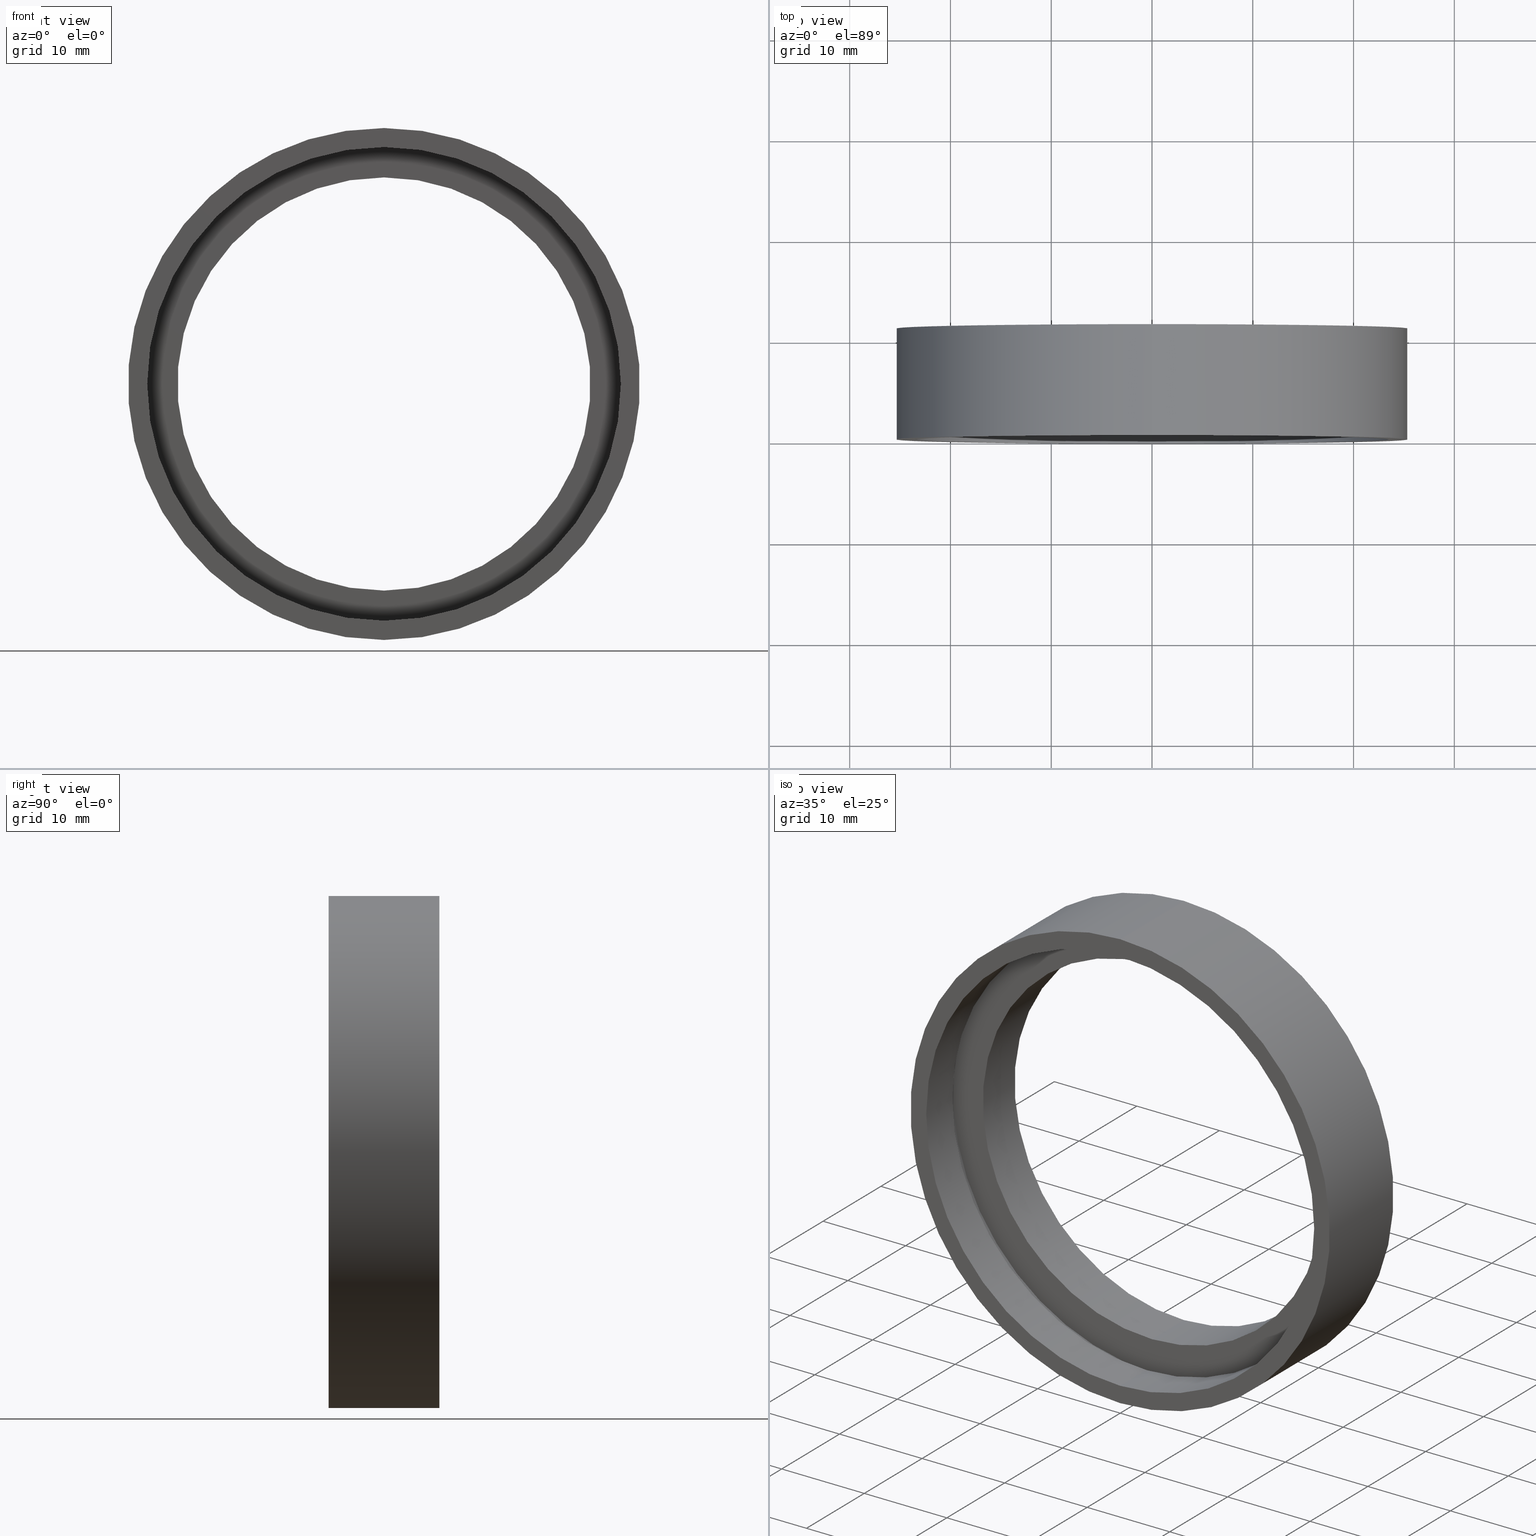
[diagram: canonical four-view strip — front | top / right | iso, engineering-drawing reading convention]
A machine part, canonical four-view strip (front | top / right | iso — engineering-drawing reading convention). The complete STEP part file that produces these views, byte-faithful:
ISO-10303-21;
HEADER;
FILE_DESCRIPTION (( 'STEP AP214' ),
    '1' );
FILE_NAME ('504021.STEP',
    '2019-10-09T02:10:04',
    ( 'user' ),
    ( '΢���й�' ),
    'SwSTEP 2.0',
    'SolidWorks 2016',
    '' );
FILE_SCHEMA (( 'AUTOMOTIVE_DESIGN' ));
ENDSEC;

DATA;
#1 = CIRCLE ( 'NONE', #322, 25.40000000000000200 ) ;
#2 = EDGE_LOOP ( 'NONE', ( #192, #219 ) ) ;
#3 = CARTESIAN_POINT ( 'NONE',  ( 2.510525938252074900E-015, 60.02082041425541100, -20.50000000000000700 ) ) ;
#4 = FILL_AREA_STYLE_COLOUR ( '', #423 ) ;
#5 = ADVANCED_FACE ( 'NONE', ( #353 ), #59, .F. ) ;
#6 = ORIENTED_EDGE ( 'NONE', *, *, #84, .T. ) ;
#7 = EDGE_LOOP ( 'NONE', ( #319, #6 ) ) ;
#8 = VERTEX_POINT ( 'NONE', #174 ) ;
#9 = UNCERTAINTY_MEASURE_WITH_UNIT (LENGTH_MEASURE( 1.000000000000000100E-005 ), #267, 'distance_accuracy_value', 'NONE');
#10 = ADVANCED_FACE ( 'NONE', ( #233 ), #75, .T. ) ;
#11 = DIRECTION ( 'NONE',  ( 0.0000000000000000000, 0.0000000000000000000, 1.000000000000000000 ) ) ;
#12 = CARTESIAN_POINT ( 'NONE',  ( 2.510525938252074900E-015, 10.99999999999999600, -20.50000000000000700 ) ) ;
#13 = DIRECTION ( 'NONE',  ( 0.0000000000000000000, 0.0000000000000000000, 1.000000000000000000 ) ) ;
#14 = AXIS2_PLACEMENT_3D ( 'NONE', #272, #115, #230 ) ;
#15 = CIRCLE ( 'NONE', #102, 23.50000000000000700 ) ;
#16 = EDGE_CURVE ( 'NONE', #8, #180, #321, .T. ) ;
#17 = MECHANICAL_DESIGN_GEOMETRIC_PRESENTATION_REPRESENTATION (  '', ( #411 ), #211 ) ;
#18 = PRESENTATION_STYLE_ASSIGNMENT (( #274 ) ) ;
#19 = VERTEX_POINT ( 'NONE', #367 ) ;
#20 = AXIS2_PLACEMENT_3D ( 'NONE', #88, #91, #100 ) ;
#21 = CARTESIAN_POINT ( 'NONE',  ( 0.0000000000000000000, 0.0000000000000000000, 25.40000000000000200 ) ) ;
#22 = CARTESIAN_POINT ( 'NONE',  ( 2.951398785945122000E-015, 4.499999999999997300, -24.10000000000000900 ) ) ;
#23 = PRESENTATION_LAYER_ASSIGNMENT (  '', '', ( #39 ) ) ;
#24 = CARTESIAN_POINT ( 'NONE',  ( 0.0000000000000000000, 60.02082041425541100, 0.0000000000000000000 ) ) ;
#25 = FILL_AREA_STYLE_COLOUR ( '', #415 ) ;
#26 = EDGE_CURVE ( 'NONE', #151, #168, #407, .T. ) ;
#27 = CYLINDRICAL_SURFACE ( 'NONE', #116, 20.50000000000000700 ) ;
#28 = DIRECTION ( 'NONE',  ( -0.0000000000000000000, 1.000000000000000000, -0.0000000000000000000 ) ) ;
#29 = DIRECTION ( 'NONE',  ( -0.0000000000000000000, 1.000000000000000000, -0.0000000000000000000 ) ) ;
#30 = PRODUCT ( '504021', '504021', '', ( #247 ) ) ;
#31 = CARTESIAN_POINT ( 'NONE',  ( 0.0000000000000000000, 4.499999999999997300, 0.0000000000000000000 ) ) ;
#32 = PLANE ( 'NONE',  #93 ) ;
#33 = DIRECTION ( 'NONE',  ( -0.0000000000000000000, 1.000000000000000000, -0.0000000000000000000 ) ) ;
#34 = DIRECTION ( 'NONE',  ( -0.0000000000000000000, 1.000000000000000000, -0.0000000000000000000 ) ) ;
#35 = EDGE_LOOP ( 'NONE', ( #124, #277, #345, #216 ) ) ;
#36 = FACE_OUTER_BOUND ( 'NONE', #35, .T. ) ;
#37 = CARTESIAN_POINT ( 'NONE',  ( 0.0000000000000000000, 5.499999999999998200, 0.0000000000000000000 ) ) ;
#38 = CARTESIAN_POINT ( 'NONE',  ( 0.0000000000000000000, 0.0000000000000000000, 23.50000000000000700 ) ) ;
#39 = STYLED_ITEM ( 'NONE', ( #426 ), #434 ) ;
#40 = CARTESIAN_POINT ( 'NONE',  ( 2.877919977996281100E-015, 0.0000000000000000000, -23.50000000000000700 ) ) ;
#41 = CARTESIAN_POINT ( 'NONE',  ( 0.0000000000000000000, 0.0000000000000000000, 0.0000000000000000000 ) ) ;
#42 = PRESENTATION_STYLE_ASSIGNMENT (( #81 ) ) ;
#43 = LINE ( 'NONE', #3, #256 ) ;
#44 = PRODUCT_DEFINITION_FORMATION_WITH_SPECIFIED_SOURCE ( '�κ�', '', #30, .NOT_KNOWN. ) ;
#45 = AXIS2_PLACEMENT_3D ( 'NONE', #203, #46, #359 ) ;
#46 = DIRECTION ( 'NONE',  ( -0.0000000000000000000, 1.000000000000000000, -0.0000000000000000000 ) ) ;
#47 = ORIENTED_EDGE ( 'NONE', *, *, #273, .T. ) ;
#48 = CYLINDRICAL_SURFACE ( 'NONE', #14, 23.50000000000000700 ) ;
#49 = VERTEX_POINT ( 'NONE', #204 ) ;
#50 = VECTOR ( 'NONE', #432, 1000.000000000000000 ) ;
#51 = DIRECTION ( 'NONE',  ( -0.0000000000000000000, 1.000000000000000000, -0.0000000000000000000 ) ) ;
#52 = CARTESIAN_POINT ( 'NONE',  ( 3.110602869834277300E-015, 60.02082041425541100, -25.40000000000000200 ) ) ;
#53 = UNCERTAINTY_MEASURE_WITH_UNIT (LENGTH_MEASURE( 1.000000000000000100E-005 ), #361, 'distance_accuracy_value', 'NONE');
#54 = MECHANICAL_DESIGN_GEOMETRIC_PRESENTATION_REPRESENTATION (  '', ( #70 ), #62 ) ;
#55 =( NAMED_UNIT ( * ) PLANE_ANGLE_UNIT ( ) SI_UNIT ( $, .RADIAN. ) );
#56 = EDGE_LOOP ( 'NONE', ( #384, #431, #408, #264 ) ) ;
#57 = EDGE_LOOP ( 'NONE', ( #400, #165 ) ) ;
#58 = CARTESIAN_POINT ( 'NONE',  ( 0.0000000000000000000, 60.02082041425541100, 0.0000000000000000000 ) ) ;
#59 = CYLINDRICAL_SURFACE ( 'NONE', #357, 24.10000000000000900 ) ;
#60 = PRESENTATION_LAYER_ASSIGNMENT (  '', '', ( #411 ) ) ;
#61 = SURFACE_SIDE_STYLE ('',( #406 ) ) ;
#62 =( GEOMETRIC_REPRESENTATION_CONTEXT ( 3 ) GLOBAL_UNCERTAINTY_ASSIGNED_CONTEXT ( ( #206 ) ) GLOBAL_UNIT_ASSIGNED_CONTEXT ( ( #92, #129, #253 ) ) REPRESENTATION_CONTEXT ( 'NONE', 'WORKASPACE' ) );
#63 = SURFACE_STYLE_USAGE ( .BOTH. , #258 ) ;
#64 = LINE ( 'NONE', #402, #303 ) ;
#65 = ORIENTED_EDGE ( 'NONE', *, *, #76, .T. ) ;
#66 = AXIS2_PLACEMENT_3D ( 'NONE', #41, #109, #420 ) ;
#67 = DIRECTION ( 'NONE',  ( 0.0000000000000000000, -1.000000000000000000, 0.0000000000000000000 ) ) ;
#68 = FILL_AREA_STYLE_COLOUR ( '', #336 ) ;
#69 = PLANE ( 'NONE',  #112 ) ;
#70 = STYLED_ITEM ( 'NONE', ( #374 ), #418 ) ;
#71 = CARTESIAN_POINT ( 'NONE',  ( 2.951398785945122000E-015, 5.499999999999998200, -24.10000000000000900 ) ) ;
#72 = CLOSED_SHELL ( 'NONE', ( #117, #326, #5, #434, #333, #418, #289, #181, #270, #148, #310, #10 ) ) ;
#73 = DIRECTION ( 'NONE',  ( 0.0000000000000000000, -1.000000000000000000, 0.0000000000000000000 ) ) ;
#74 = COLOUR_RGB ( '',1.000000000000000000, 1.000000000000000000, 1.000000000000000000 ) ;
#75 = CYLINDRICAL_SURFACE ( 'NONE', #231, 25.40000000000000200 ) ;
#76 = EDGE_CURVE ( 'NONE', #190, #180, #43, .T. ) ;
#77 = FACE_OUTER_BOUND ( 'NONE', #164, .T. ) ;
#78 = CYLINDRICAL_SURFACE ( 'NONE', #209, 24.10000000000000900 ) ;
#79 = APPLICATION_CONTEXT ( 'automotive_design' ) ;
#80 = DIRECTION ( 'NONE',  ( 0.0000000000000000000, 0.0000000000000000000, 1.000000000000000000 ) ) ;
#81 = SURFACE_STYLE_USAGE ( .BOTH. , #296 ) ;
#82 = DIRECTION ( 'NONE',  ( -0.0000000000000000000, 1.000000000000000000, -0.0000000000000000000 ) ) ;
#83 = ORIENTED_EDGE ( 'NONE', *, *, #280, .F. ) ;
#84 = EDGE_CURVE ( 'NONE', #168, #151, #380, .T. ) ;
#85 = AXIS2_PLACEMENT_3D ( 'NONE', #304, #218, #171 ) ;
#86 = PRESENTATION_LAYER_ASSIGNMENT (  '', '', ( #70 ) ) ;
#87 = DIRECTION ( 'NONE',  ( 0.0000000000000000000, 0.0000000000000000000, 1.000000000000000000 ) ) ;
#88 = CARTESIAN_POINT ( 'NONE',  ( 0.0000000000000000000, 0.0000000000000000000, 0.0000000000000000000 ) ) ;
#89 = AXIS2_PLACEMENT_3D ( 'NONE', #205, #122, #311 ) ;
#90 = CARTESIAN_POINT ( 'NONE',  ( 2.877919977996281100E-015, 60.02082041425541100, -23.50000000000000700 ) ) ;
#91 = DIRECTION ( 'NONE',  ( -0.0000000000000000000, 1.000000000000000000, -0.0000000000000000000 ) ) ;
#92 =( LENGTH_UNIT ( ) NAMED_UNIT ( * ) SI_UNIT ( .MILLI., .METRE. ) );
#93 = AXIS2_PLACEMENT_3D ( 'NONE', #146, #73, #132 ) ;
#94 = LINE ( 'NONE', #339, #198 ) ;
#95 = FILL_AREA_STYLE_COLOUR ( '', #354 ) ;
#96 = DIRECTION ( 'NONE',  ( -0.0000000000000000000, 1.000000000000000000, -0.0000000000000000000 ) ) ;
#97 = CARTESIAN_POINT ( 'NONE',  ( 0.0000000000000000000, 60.02082041425541100, 24.10000000000000900 ) ) ;
#98 = SURFACE_STYLE_FILL_AREA ( #232 ) ;
#99 = CARTESIAN_POINT ( 'NONE',  ( 20.50000000000000700, 11.00000000000000000, 0.0000000000000000000 ) ) ;
#100 = DIRECTION ( 'NONE',  ( 0.0000000000000000000, 0.0000000000000000000, 1.000000000000000000 ) ) ;
#101 = SURFACE_STYLE_USAGE ( .BOTH. , #61 ) ;
#102 = AXIS2_PLACEMENT_3D ( 'NONE', #250, #376, #13 ) ;
#103 = EDGE_CURVE ( 'NONE', #140, #389, #94, .T. ) ;
#104 = DIRECTION ( 'NONE',  ( -0.0000000000000000000, 1.000000000000000000, -0.0000000000000000000 ) ) ;
#105 = CIRCLE ( 'NONE', #221, 24.10000000000000900 ) ;
#106 = CARTESIAN_POINT ( 'NONE',  ( 0.0000000000000000000, 10.99999999999999600, 0.0000000000000000000 ) ) ;
#107 = EDGE_CURVE ( 'NONE', #190, #49, #368, .T. ) ;
#108 = DIRECTION ( 'NONE',  ( -0.0000000000000000000, 1.000000000000000000, -0.0000000000000000000 ) ) ;
#109 = DIRECTION ( 'NONE',  ( -0.0000000000000000000, 1.000000000000000000, -0.0000000000000000000 ) ) ;
#110 = CIRCLE ( 'NONE', #300, 24.10000000000000900 ) ;
#111 = FACE_OUTER_BOUND ( 'NONE', #362, .T. ) ;
#112 = AXIS2_PLACEMENT_3D ( 'NONE', #383, #308, #358 ) ;
#113 = CIRCLE ( 'NONE', #227, 23.50000000000000700 ) ;
#114 = SURFACE_SIDE_STYLE ('',( #201 ) ) ;
#115 = DIRECTION ( 'NONE',  ( -0.0000000000000000000, 1.000000000000000000, -0.0000000000000000000 ) ) ;
#116 = AXIS2_PLACEMENT_3D ( 'NONE', #58, #28, #167 ) ;
#117 = ADVANCED_FACE ( 'NONE', ( #347 ), #341, .T. ) ;
#118 = CIRCLE ( 'NONE', #66, 25.40000000000000200 ) ;
#119 = DIRECTION ( 'NONE',  ( 0.0000000000000000000, 0.0000000000000000000, 1.000000000000000000 ) ) ;
#120 = FILL_AREA_STYLE_COLOUR ( '', #74 ) ;
#121 = DIRECTION ( 'NONE',  ( 0.0000000000000000000, 0.0000000000000000000, 1.000000000000000000 ) ) ;
#122 = DIRECTION ( 'NONE',  ( -0.0000000000000000000, 1.000000000000000000, -0.0000000000000000000 ) ) ;
#123 = VERTEX_POINT ( 'NONE', #262 ) ;
#124 = ORIENTED_EDGE ( 'NONE', *, *, #327, .F. ) ;
#125 = LINE ( 'NONE', #90, #328 ) ;
#126 = EDGE_CURVE ( 'NONE', #180, #8, #393, .T. ) ;
#127 = AXIS2_PLACEMENT_3D ( 'NONE', #99, #67, #427 ) ;
#128 = DIRECTION ( 'NONE',  ( -0.0000000000000000000, 1.000000000000000000, -0.0000000000000000000 ) ) ;
#129 =( NAMED_UNIT ( * ) PLANE_ANGLE_UNIT ( ) SI_UNIT ( $, .RADIAN. ) );
#130 = STYLED_ITEM ( 'NONE', ( #173 ), #158 ) ;
#131 = FILL_AREA_STYLE ('',( #95 ) ) ;
#132 = DIRECTION ( 'NONE',  ( 0.0000000000000000000, -0.0000000000000000000, -1.000000000000000000 ) ) ;
#133 = APPLICATION_PROTOCOL_DEFINITION ( 'draft international standard', 'automotive_design', 1998, #309 ) ;
#134 = EDGE_CURVE ( 'NONE', #49, #8, #297, .T. ) ;
#135 = DIRECTION ( 'NONE',  ( 0.0000000000000000000, 0.0000000000000000000, 1.000000000000000000 ) ) ;
#136 = ORIENTED_EDGE ( 'NONE', *, *, #338, .F. ) ;
#137 = CARTESIAN_POINT ( 'NONE',  ( 24.10000000000000900, 5.499999999999998200, 0.0000000000000000000 ) ) ;
#138 =( GEOMETRIC_REPRESENTATION_CONTEXT ( 3 ) GLOBAL_UNCERTAINTY_ASSIGNED_CONTEXT ( ( #268 ) ) GLOBAL_UNIT_ASSIGNED_CONTEXT ( ( #422, #249, #214 ) ) REPRESENTATION_CONTEXT ( 'NONE', 'WORKASPACE' ) );
#139 = CARTESIAN_POINT ( 'NONE',  ( 2.510525938252074900E-015, 5.499999999999998200, -20.50000000000000700 ) ) ;
#140 = VERTEX_POINT ( 'NONE', #38 ) ;
#141 = AXIS2_PLACEMENT_3D ( 'NONE', #222, #417, #189 ) ;
#142 = DIRECTION ( 'NONE',  ( 0.0000000000000000000, 0.0000000000000000000, 1.000000000000000000 ) ) ;
#143 =( NAMED_UNIT ( * ) SI_UNIT ( $, .STERADIAN. ) SOLID_ANGLE_UNIT ( ) );
#144 = VERTEX_POINT ( 'NONE', #21 ) ;
#145 = ORIENTED_EDGE ( 'NONE', *, *, #327, .T. ) ;
#146 = CARTESIAN_POINT ( 'NONE',  ( 23.50000000000000700, 4.499999999999999100, 0.0000000000000000000 ) ) ;
#147 = FILL_AREA_STYLE ('',( #25 ) ) ;
#148 = ADVANCED_FACE ( 'NONE', ( #111 ), #351, .F. ) ;
#149 = DIRECTION ( 'NONE',  ( -0.0000000000000000000, 1.000000000000000000, -0.0000000000000000000 ) ) ;
#150 = FACE_OUTER_BOUND ( 'NONE', #238, .T. ) ;
#151 = VERTEX_POINT ( 'NONE', #363 ) ;
#152 =( GEOMETRIC_REPRESENTATION_CONTEXT ( 3 ) GLOBAL_UNCERTAINTY_ASSIGNED_CONTEXT ( ( #53 ) ) GLOBAL_UNIT_ASSIGNED_CONTEXT ( ( #361, #177, #340 ) ) REPRESENTATION_CONTEXT ( 'NONE', 'WORKASPACE' ) );
#153 = FILL_AREA_STYLE ('',( #4 ) ) ;
#154 = AXIS2_PLACEMENT_3D ( 'NONE', #37, #210, #370 ) ;
#155 = EDGE_CURVE ( 'NONE', #144, #169, #118, .T. ) ;
#156 = FACE_BOUND ( 'NONE', #217, .T. ) ;
#157 = SURFACE_STYLE_FILL_AREA ( #302 ) ;
#158 = MANIFOLD_SOLID_BREP ( '��ת1', #72 ) ;
#159 = AXIS2_PLACEMENT_3D ( 'NONE', #342, #381, #430 ) ;
#160 = VERTEX_POINT ( 'NONE', #22 ) ;
#161 =( GEOMETRIC_REPRESENTATION_CONTEXT ( 3 ) GLOBAL_UNCERTAINTY_ASSIGNED_CONTEXT ( ( #288 ) ) GLOBAL_UNIT_ASSIGNED_CONTEXT ( ( #197, #329, #143 ) ) REPRESENTATION_CONTEXT ( 'NONE', 'WORKASPACE' ) );
#162 = ORIENTED_EDGE ( 'NONE', *, *, #280, .T. ) ;
#163 = EDGE_CURVE ( 'NONE', #169, #168, #251, .T. ) ;
#164 = EDGE_LOOP ( 'NONE', ( #292, #65, #182, #425 ) ) ;
#165 = ORIENTED_EDGE ( 'NONE', *, *, #187, .T. ) ;
#166 = CARTESIAN_POINT ( 'NONE',  ( 0.0000000000000000000, 4.499999999999997300, 0.0000000000000000000 ) ) ;
#167 = DIRECTION ( 'NONE',  ( 0.0000000000000000000, 0.0000000000000000000, 1.000000000000000000 ) ) ;
#168 = VERTEX_POINT ( 'NONE', #390 ) ;
#169 = VERTEX_POINT ( 'NONE', #366 ) ;
#170 = EDGE_CURVE ( 'NONE', #169, #144, #1, .T. ) ;
#171 = DIRECTION ( 'NONE',  ( 0.0000000000000000000, 0.0000000000000000000, 1.000000000000000000 ) ) ;
#172 = CARTESIAN_POINT ( 'NONE',  ( 0.0000000000000000000, 10.99999999999999600, 0.0000000000000000000 ) ) ;
#173 = PRESENTATION_STYLE_ASSIGNMENT (( #317 ) ) ;
#174 = CARTESIAN_POINT ( 'NONE',  ( 0.0000000000000000000, 10.99999999999999600, 20.50000000000000700 ) ) ;
#175 = ORIENTED_EDGE ( 'NONE', *, *, #252, .F. ) ;
#176 = DIRECTION ( 'NONE',  ( -0.0000000000000000000, 1.000000000000000000, -0.0000000000000000000 ) ) ;
#177 =( NAMED_UNIT ( * ) PLANE_ANGLE_UNIT ( ) SI_UNIT ( $, .RADIAN. ) );
#178 = MECHANICAL_DESIGN_GEOMETRIC_PRESENTATION_REPRESENTATION (  '', ( #318 ), #152 ) ;
#179 = CYLINDRICAL_SURFACE ( 'NONE', #301, 23.50000000000000700 ) ;
#180 = VERTEX_POINT ( 'NONE', #12 ) ;
#181 = ADVANCED_FACE ( 'NONE', ( #335 ), #78, .F. ) ;
#182 = ORIENTED_EDGE ( 'NONE', *, *, #126, .T. ) ;
#183 = EDGE_CURVE ( 'NONE', #123, #235, #263, .T. ) ;
#184 = FACE_BOUND ( 'NONE', #57, .T. ) ;
#185 =( NAMED_UNIT ( * ) SI_UNIT ( $, .STERADIAN. ) SOLID_ANGLE_UNIT ( ) );
#186 =( NAMED_UNIT ( * ) PLANE_ANGLE_UNIT ( ) SI_UNIT ( $, .RADIAN. ) );
#187 = EDGE_CURVE ( 'NONE', #286, #140, #394, .T. ) ;
#188 = PRODUCT_DEFINITION_SHAPE ( 'NONE', 'NONE',  #229 ) ;
#189 = DIRECTION ( 'NONE',  ( 0.0000000000000000000, 0.0000000000000000000, 1.000000000000000000 ) ) ;
#190 = VERTEX_POINT ( 'NONE', #139 ) ;
#191 = DIRECTION ( 'NONE',  ( 0.0000000000000000000, 0.0000000000000000000, 1.000000000000000000 ) ) ;
#192 = ORIENTED_EDGE ( 'NONE', *, *, #16, .F. ) ;
#193 = FACE_OUTER_BOUND ( 'NONE', #7, .T. ) ;
#194 = DIRECTION ( 'NONE',  ( -0.0000000000000000000, 1.000000000000000000, -0.0000000000000000000 ) ) ;
#195 = DIRECTION ( 'NONE',  ( -0.0000000000000000000, 1.000000000000000000, -0.0000000000000000000 ) ) ;
#196 = ORIENTED_EDGE ( 'NONE', *, *, #261, .T. ) ;
#197 =( LENGTH_UNIT ( ) NAMED_UNIT ( * ) SI_UNIT ( .MILLI., .METRE. ) );
#198 = VECTOR ( 'NONE', #34, 1000.000000000000000 ) ;
#199 = DIRECTION ( 'NONE',  ( 0.0000000000000000000, 0.0000000000000000000, 1.000000000000000000 ) ) ;
#200 = ORIENTED_EDGE ( 'NONE', *, *, #187, .F. ) ;
#201 = SURFACE_STYLE_FILL_AREA ( #147 ) ;
#202 = FACE_OUTER_BOUND ( 'NONE', #287, .T. ) ;
#203 = CARTESIAN_POINT ( 'NONE',  ( 0.0000000000000000000, 0.0000000000000000000, 0.0000000000000000000 ) ) ;
#204 = CARTESIAN_POINT ( 'NONE',  ( 0.0000000000000000000, 5.499999999999998200, 20.50000000000000700 ) ) ;
#205 = CARTESIAN_POINT ( 'NONE',  ( 0.0000000000000000000, 5.499999999999998200, 0.0000000000000000000 ) ) ;
#206 = UNCERTAINTY_MEASURE_WITH_UNIT (LENGTH_MEASURE( 1.000000000000000100E-005 ), #92, 'distance_accuracy_value', 'NONE');
#207 = COLOUR_RGB ( '',1.000000000000000000, 1.000000000000000000, 1.000000000000000000 ) ;
#208 = EDGE_LOOP ( 'NONE', ( #298, #162 ) ) ;
#209 = AXIS2_PLACEMENT_3D ( 'NONE', #369, #149, #199 ) ;
#210 = DIRECTION ( 'NONE',  ( -0.0000000000000000000, 1.000000000000000000, -0.0000000000000000000 ) ) ;
#211 =( GEOMETRIC_REPRESENTATION_CONTEXT ( 3 ) GLOBAL_UNCERTAINTY_ASSIGNED_CONTEXT ( ( #9 ) ) GLOBAL_UNIT_ASSIGNED_CONTEXT ( ( #267, #213, #185 ) ) REPRESENTATION_CONTEXT ( 'NONE', 'WORKASPACE' ) );
#212 = ORIENTED_EDGE ( 'NONE', *, *, #397, .F. ) ;
#213 =( NAMED_UNIT ( * ) PLANE_ANGLE_UNIT ( ) SI_UNIT ( $, .RADIAN. ) );
#214 =( NAMED_UNIT ( * ) SI_UNIT ( $, .STERADIAN. ) SOLID_ANGLE_UNIT ( ) );
#215 = FACE_OUTER_BOUND ( 'NONE', #208, .T. ) ;
#216 = ORIENTED_EDGE ( 'NONE', *, *, #371, .T. ) ;
#217 = EDGE_LOOP ( 'NONE', ( #224, #372 ) ) ;
#218 = DIRECTION ( 'NONE',  ( -0.0000000000000000000, 1.000000000000000000, -0.0000000000000000000 ) ) ;
#219 = ORIENTED_EDGE ( 'NONE', *, *, #126, .F. ) ;
#220 = ORIENTED_EDGE ( 'NONE', *, *, #76, .F. ) ;
#221 = AXIS2_PLACEMENT_3D ( 'NONE', #166, #176, #11 ) ;
#222 = CARTESIAN_POINT ( 'NONE',  ( 0.0000000000000000000, 10.99999999999999600, 0.0000000000000000000 ) ) ;
#223 = MECHANICAL_DESIGN_GEOMETRIC_PRESENTATION_REPRESENTATION (  '', ( #130 ), #138 ) ;
#224 = ORIENTED_EDGE ( 'NONE', *, *, #397, .T. ) ;
#225 = CARTESIAN_POINT ( 'NONE',  ( 0.0000000000000000000, 60.02082041425541100, 0.0000000000000000000 ) ) ;
#226 = ORIENTED_EDGE ( 'NONE', *, *, #252, .T. ) ;
#227 = AXIS2_PLACEMENT_3D ( 'NONE', #325, #348, #404 ) ;
#228 =( NAMED_UNIT ( * ) SI_UNIT ( $, .STERADIAN. ) SOLID_ANGLE_UNIT ( ) );
#229 = PRODUCT_DEFINITION ( 'δ֪', '', #44, #352 ) ;
#230 = DIRECTION ( 'NONE',  ( 0.0000000000000000000, 0.0000000000000000000, 1.000000000000000000 ) ) ;
#231 = AXIS2_PLACEMENT_3D ( 'NONE', #225, #104, #433 ) ;
#232 = FILL_AREA_STYLE ('',( #120 ) ) ;
#233 = FACE_OUTER_BOUND ( 'NONE', #379, .T. ) ;
#234 = ORIENTED_EDGE ( 'NONE', *, *, #170, .F. ) ;
#235 = VERTEX_POINT ( 'NONE', #285 ) ;
#236 = CIRCLE ( 'NONE', #45, 23.50000000000000700 ) ;
#237 = FACE_BOUND ( 'NONE', #331, .T. ) ;
#238 = EDGE_LOOP ( 'NONE', ( #254, #234 ) ) ;
#239 = DIRECTION ( 'NONE',  ( 0.0000000000000000000, 0.0000000000000000000, 1.000000000000000000 ) ) ;
#240 =( LENGTH_UNIT ( ) NAMED_UNIT ( * ) SI_UNIT ( .MILLI., .METRE. ) );
#241 = DIRECTION ( 'NONE',  ( -0.0000000000000000000, 1.000000000000000000, -0.0000000000000000000 ) ) ;
#242 = SHAPE_DEFINITION_REPRESENTATION ( #188, #375 ) ;
#243 = SURFACE_STYLE_FILL_AREA ( #153 ) ;
#244 = PRESENTATION_LAYER_ASSIGNMENT (  '', '', ( #130 ) ) ;
#245 = EDGE_LOOP ( 'NONE', ( #83, #373, #196, #246 ) ) ;
#246 = ORIENTED_EDGE ( 'NONE', *, *, #183, .F. ) ;
#247 = PRODUCT_CONTEXT ( 'NONE', #79, 'mechanical' ) ;
#248 = VERTEX_POINT ( 'NONE', #71 ) ;
#249 =( NAMED_UNIT ( * ) PLANE_ANGLE_UNIT ( ) SI_UNIT ( $, .RADIAN. ) );
#250 = CARTESIAN_POINT ( 'NONE',  ( 0.0000000000000000000, 4.499999999999997300, 0.0000000000000000000 ) ) ;
#251 = LINE ( 'NONE', #52, #395 ) ;
#252 = EDGE_CURVE ( 'NONE', #19, #389, #113, .T. ) ;
#253 =( NAMED_UNIT ( * ) SI_UNIT ( $, .STERADIAN. ) SOLID_ANGLE_UNIT ( ) );
#254 = ORIENTED_EDGE ( 'NONE', *, *, #155, .F. ) ;
#255 = VECTOR ( 'NONE', #195, 1000.000000000000000 ) ;
#256 = VECTOR ( 'NONE', #33, 1000.000000000000000 ) ;
#257 =( LENGTH_UNIT ( ) NAMED_UNIT ( * ) SI_UNIT ( .MILLI., .METRE. ) );
#258 = SURFACE_SIDE_STYLE ('',( #388 ) ) ;
#259 = FACE_OUTER_BOUND ( 'NONE', #320, .T. ) ;
#260 = FILL_AREA_STYLE_COLOUR ( '', #207 ) ;
#261 = EDGE_CURVE ( 'NONE', #248, #235, #312, .T. ) ;
#262 = CARTESIAN_POINT ( 'NONE',  ( 0.0000000000000000000, 4.499999999999997300, 24.10000000000000900 ) ) ;
#263 = LINE ( 'NONE', #97, #255 ) ;
#264 = ORIENTED_EDGE ( 'NONE', *, *, #273, .F. ) ;
#265 = ORIENTED_EDGE ( 'NONE', *, *, #170, .T. ) ;
#266 = CARTESIAN_POINT ( 'NONE',  ( 0.0000000000000000000, 10.99999999999999600, 0.0000000000000000000 ) ) ;
#267 =( LENGTH_UNIT ( ) NAMED_UNIT ( * ) SI_UNIT ( .MILLI., .METRE. ) );
#268 = UNCERTAINTY_MEASURE_WITH_UNIT (LENGTH_MEASURE( 1.000000000000000100E-005 ), #422, 'distance_accuracy_value', 'NONE');
#269 = MECHANICAL_DESIGN_GEOMETRIC_PRESENTATION_REPRESENTATION (  '', ( #39 ), #161 ) ;
#270 = ADVANCED_FACE ( 'NONE', ( #202, #156 ), #343, .F. ) ;
#271 = PRESENTATION_STYLE_ASSIGNMENT (( #428 ) ) ;
#272 = CARTESIAN_POINT ( 'NONE',  ( 0.0000000000000000000, 60.02082041425541100, 0.0000000000000000000 ) ) ;
#273 = EDGE_CURVE ( 'NONE', #144, #151, #281, .T. ) ;
#274 = SURFACE_STYLE_USAGE ( .BOTH. , #291 ) ;
#275 = PLANE ( 'NONE',  #127 ) ;
#276 = ORIENTED_EDGE ( 'NONE', *, *, #103, .F. ) ;
#277 = ORIENTED_EDGE ( 'NONE', *, *, #424, .F. ) ;
#278 = CIRCLE ( 'NONE', #154, 24.10000000000000900 ) ;
#279 = APPLICATION_PROTOCOL_DEFINITION ( 'draft international standard', 'automotive_design', 1998, #79 ) ;
#280 = EDGE_CURVE ( 'NONE', #160, #123, #110, .T. ) ;
#281 = LINE ( 'NONE', #360, #50 ) ;
#282 = CARTESIAN_POINT ( 'NONE',  ( 0.0000000000000000000, 0.0000000000000000000, 0.0000000000000000000 ) ) ;
#283 = ORIENTED_EDGE ( 'NONE', *, *, #16, .T. ) ;
#284 =( GEOMETRIC_REPRESENTATION_CONTEXT ( 3 ) GLOBAL_UNCERTAINTY_ASSIGNED_CONTEXT ( ( #401 ) ) GLOBAL_UNIT_ASSIGNED_CONTEXT ( ( #257, #55, #228 ) ) REPRESENTATION_CONTEXT ( 'NONE', 'WORKASPACE' ) );
#285 = CARTESIAN_POINT ( 'NONE',  ( 0.0000000000000000000, 5.499999999999998200, 24.10000000000000900 ) ) ;
#286 = VERTEX_POINT ( 'NONE', #40 ) ;
#287 = EDGE_LOOP ( 'NONE', ( #305, #405 ) ) ;
#288 = UNCERTAINTY_MEASURE_WITH_UNIT (LENGTH_MEASURE( 1.000000000000000100E-005 ), #197, 'distance_accuracy_value', 'NONE');
#289 = ADVANCED_FACE ( 'NONE', ( #237, #215 ), #32, .F. ) ;
#290 = AXIS2_PLACEMENT_3D ( 'NONE', #106, #108, #387 ) ;
#291 = SURFACE_SIDE_STYLE ('',( #157 ) ) ;
#292 = ORIENTED_EDGE ( 'NONE', *, *, #107, .F. ) ;
#293 = EDGE_LOOP ( 'NONE', ( #355, #136, #385, #330 ) ) ;
#294 = STYLED_ITEM ( 'NONE', ( #42 ), #375 ) ;
#295 = PRESENTATION_LAYER_ASSIGNMENT (  '', '', ( #318 ) ) ;
#296 = SURFACE_SIDE_STYLE ('',( #98 ) ) ;
#297 = LINE ( 'NONE', #410, #337 ) ;
#298 = ORIENTED_EDGE ( 'NONE', *, *, #338, .T. ) ;
#299 = CIRCLE ( 'NONE', #89, 20.50000000000000700 ) ;
#300 = AXIS2_PLACEMENT_3D ( 'NONE', #31, #194, #421 ) ;
#301 = AXIS2_PLACEMENT_3D ( 'NONE', #24, #96, #135 ) ;
#302 = FILL_AREA_STYLE ('',( #68 ) ) ;
#303 = VECTOR ( 'NONE', #324, 1000.000000000000000 ) ;
#304 = CARTESIAN_POINT ( 'NONE',  ( 0.0000000000000000000, 60.02082041425541100, 0.0000000000000000000 ) ) ;
#305 = ORIENTED_EDGE ( 'NONE', *, *, #365, .F. ) ;
#306 = AXIS2_PLACEMENT_3D ( 'NONE', #172, #128, #80 ) ;
#307 = DIRECTION ( 'NONE',  ( -0.0000000000000000000, 1.000000000000000000, -0.0000000000000000000 ) ) ;
#308 = DIRECTION ( 'NONE',  ( -0.0000000000000000000, 1.000000000000000000, 0.0000000000000000000 ) ) ;
#309 = APPLICATION_CONTEXT ( 'automotive_design' ) ;
#310 = ADVANCED_FACE ( 'NONE', ( #364, #193 ), #275, .F. ) ;
#311 = DIRECTION ( 'NONE',  ( 0.0000000000000000000, 0.0000000000000000000, 1.000000000000000000 ) ) ;
#312 = CIRCLE ( 'NONE', #377, 24.10000000000000900 ) ;
#313 = ORIENTED_EDGE ( 'NONE', *, *, #371, .F. ) ;
#314 = ORIENTED_EDGE ( 'NONE', *, *, #134, .T. ) ;
#315 = DIRECTION ( 'NONE',  ( -0.0000000000000000000, 1.000000000000000000, -0.0000000000000000000 ) ) ;
#316 = CARTESIAN_POINT ( 'NONE',  ( 0.0000000000000000000, 5.499999999999998200, 0.0000000000000000000 ) ) ;
#317 = SURFACE_STYLE_USAGE ( .BOTH. , #114 ) ;
#318 = STYLED_ITEM ( 'NONE', ( #271 ), #148 ) ;
#319 = ORIENTED_EDGE ( 'NONE', *, *, #26, .T. ) ;
#320 = EDGE_LOOP ( 'NONE', ( #200, #145, #226, #276 ) ) ;
#321 = CIRCLE ( 'NONE', #306, 20.50000000000000700 ) ;
#322 = AXIS2_PLACEMENT_3D ( 'NONE', #323, #82, #119 ) ;
#323 = CARTESIAN_POINT ( 'NONE',  ( 0.0000000000000000000, 0.0000000000000000000, 0.0000000000000000000 ) ) ;
#324 = DIRECTION ( 'NONE',  ( -0.0000000000000000000, 1.000000000000000000, -0.0000000000000000000 ) ) ;
#325 = CARTESIAN_POINT ( 'NONE',  ( 0.0000000000000000000, 4.499999999999997300, 0.0000000000000000000 ) ) ;
#326 = ADVANCED_FACE ( 'NONE', ( #77 ), #27, .F. ) ;
#327 = EDGE_CURVE ( 'NONE', #286, #19, #125, .T. ) ;
#328 = VECTOR ( 'NONE', #51, 1000.000000000000000 ) ;
#329 =( NAMED_UNIT ( * ) PLANE_ANGLE_UNIT ( ) SI_UNIT ( $, .RADIAN. ) );
#330 = ORIENTED_EDGE ( 'NONE', *, *, #365, .T. ) ;
#331 = EDGE_LOOP ( 'NONE', ( #313, #175 ) ) ;
#332 = AXIS2_PLACEMENT_3D ( 'NONE', #137, #398, #382 ) ;
#333 = ADVANCED_FACE ( 'NONE', ( #150, #184 ), #69, .F. ) ;
#334 = DIRECTION ( 'NONE',  ( -0.0000000000000000000, 1.000000000000000000, -0.0000000000000000000 ) ) ;
#335 = FACE_OUTER_BOUND ( 'NONE', #293, .T. ) ;
#336 = COLOUR_RGB ( '',1.000000000000000000, 1.000000000000000000, 1.000000000000000000 ) ;
#337 = VECTOR ( 'NONE', #409, 1000.000000000000000 ) ;
#338 = EDGE_CURVE ( 'NONE', #123, #160, #105, .T. ) ;
#339 = CARTESIAN_POINT ( 'NONE',  ( 0.0000000000000000000, 60.02082041425541100, 23.50000000000000700 ) ) ;
#340 =( NAMED_UNIT ( * ) SI_UNIT ( $, .STERADIAN. ) SOLID_ANGLE_UNIT ( ) );
#341 = CYLINDRICAL_SURFACE ( 'NONE', #346, 25.40000000000000200 ) ;
#342 = CARTESIAN_POINT ( 'NONE',  ( 0.0000000000000000000, 5.499999999999998200, 0.0000000000000000000 ) ) ;
#343 = PLANE ( 'NONE',  #332 ) ;
#344 = ORIENTED_EDGE ( 'NONE', *, *, #84, .F. ) ;
#345 = ORIENTED_EDGE ( 'NONE', *, *, #103, .T. ) ;
#346 = AXIS2_PLACEMENT_3D ( 'NONE', #419, #29, #191 ) ;
#347 = FACE_OUTER_BOUND ( 'NONE', #56, .T. ) ;
#348 = DIRECTION ( 'NONE',  ( -0.0000000000000000000, 1.000000000000000000, -0.0000000000000000000 ) ) ;
#349 = PRODUCT_RELATED_PRODUCT_CATEGORY ( 'part', '', ( #30 ) ) ;
#350 = FILL_AREA_STYLE ('',( #260 ) ) ;
#351 = CYLINDRICAL_SURFACE ( 'NONE', #85, 20.50000000000000700 ) ;
#352 = PRODUCT_DEFINITION_CONTEXT ( 'detailed design', #309, 'design' ) ;
#353 = FACE_OUTER_BOUND ( 'NONE', #245, .T. ) ;
#354 = COLOUR_RGB ( '',1.000000000000000000, 1.000000000000000000, 1.000000000000000000 ) ;
#355 = ORIENTED_EDGE ( 'NONE', *, *, #386, .F. ) ;
#356 = AXIS2_PLACEMENT_3D ( 'NONE', #282, #87, #403 ) ;
#357 = AXIS2_PLACEMENT_3D ( 'NONE', #392, #307, #142 ) ;
#358 = DIRECTION ( 'NONE',  ( 0.0000000000000000000, 0.0000000000000000000, 1.000000000000000000 ) ) ;
#359 = DIRECTION ( 'NONE',  ( 0.0000000000000000000, 0.0000000000000000000, 1.000000000000000000 ) ) ;
#360 = CARTESIAN_POINT ( 'NONE',  ( 0.0000000000000000000, 60.02082041425541100, 25.40000000000000200 ) ) ;
#361 =( LENGTH_UNIT ( ) NAMED_UNIT ( * ) SI_UNIT ( .MILLI., .METRE. ) );
#362 = EDGE_LOOP ( 'NONE', ( #220, #212, #314, #283 ) ) ;
#363 = CARTESIAN_POINT ( 'NONE',  ( 0.0000000000000000000, 10.99999999999999600, 25.40000000000000200 ) ) ;
#364 = FACE_BOUND ( 'NONE', #2, .T. ) ;
#365 = EDGE_CURVE ( 'NONE', #235, #248, #278, .T. ) ;
#366 = CARTESIAN_POINT ( 'NONE',  ( 3.110602869834277300E-015, 0.0000000000000000000, -25.40000000000000200 ) ) ;
#367 = CARTESIAN_POINT ( 'NONE',  ( 2.877919977996281100E-015, 4.499999999999997300, -23.50000000000000700 ) ) ;
#368 = CIRCLE ( 'NONE', #159, 20.50000000000000700 ) ;
#369 = CARTESIAN_POINT ( 'NONE',  ( 0.0000000000000000000, 60.02082041425541100, 0.0000000000000000000 ) ) ;
#370 = DIRECTION ( 'NONE',  ( 0.0000000000000000000, 0.0000000000000000000, 1.000000000000000000 ) ) ;
#371 = EDGE_CURVE ( 'NONE', #389, #19, #15, .T. ) ;
#372 = ORIENTED_EDGE ( 'NONE', *, *, #107, .T. ) ;
#373 = ORIENTED_EDGE ( 'NONE', *, *, #386, .T. ) ;
#374 = PRESENTATION_STYLE_ASSIGNMENT (( #63 ) ) ;
#375 = ADVANCED_BREP_SHAPE_REPRESENTATION ( '504021', ( #158, #356 ), #284 ) ;
#376 = DIRECTION ( 'NONE',  ( -0.0000000000000000000, 1.000000000000000000, -0.0000000000000000000 ) ) ;
#377 = AXIS2_PLACEMENT_3D ( 'NONE', #316, #315, #239 ) ;
#378 = MECHANICAL_DESIGN_GEOMETRIC_PRESENTATION_REPRESENTATION (  '', ( #294 ), #399 ) ;
#379 = EDGE_LOOP ( 'NONE', ( #416, #265, #47, #344 ) ) ;
#380 = CIRCLE ( 'NONE', #141, 25.40000000000000200 ) ;
#381 = DIRECTION ( 'NONE',  ( -0.0000000000000000000, 1.000000000000000000, -0.0000000000000000000 ) ) ;
#382 = DIRECTION ( 'NONE',  ( 0.0000000000000000000, 0.0000000000000000000, 1.000000000000000000 ) ) ;
#383 = CARTESIAN_POINT ( 'NONE',  ( 25.40000000000000200, -2.755455298081544800E-016, 0.0000000000000000000 ) ) ;
#384 = ORIENTED_EDGE ( 'NONE', *, *, #155, .T. ) ;
#385 = ORIENTED_EDGE ( 'NONE', *, *, #183, .T. ) ;
#386 = EDGE_CURVE ( 'NONE', #160, #248, #64, .T. ) ;
#387 = DIRECTION ( 'NONE',  ( 0.0000000000000000000, 0.0000000000000000000, 1.000000000000000000 ) ) ;
#388 = SURFACE_STYLE_FILL_AREA ( #350 ) ;
#389 = VERTEX_POINT ( 'NONE', #396 ) ;
#390 = CARTESIAN_POINT ( 'NONE',  ( 3.110602869834277300E-015, 10.99999999999999600, -25.40000000000000200 ) ) ;
#391 = PRESENTATION_LAYER_ASSIGNMENT (  '', '', ( #294 ) ) ;
#392 = CARTESIAN_POINT ( 'NONE',  ( 0.0000000000000000000, 60.02082041425541100, 0.0000000000000000000 ) ) ;
#393 = CIRCLE ( 'NONE', #290, 20.50000000000000700 ) ;
#394 = CIRCLE ( 'NONE', #20, 23.50000000000000700 ) ;
#395 = VECTOR ( 'NONE', #241, 1000.000000000000000 ) ;
#396 = CARTESIAN_POINT ( 'NONE',  ( 0.0000000000000000000, 4.499999999999997300, 23.50000000000000700 ) ) ;
#397 = EDGE_CURVE ( 'NONE', #49, #190, #299, .T. ) ;
#398 = DIRECTION ( 'NONE',  ( -0.0000000000000000000, 1.000000000000000000, 0.0000000000000000000 ) ) ;
#399 =( GEOMETRIC_REPRESENTATION_CONTEXT ( 3 ) GLOBAL_UNCERTAINTY_ASSIGNED_CONTEXT ( ( #429 ) ) GLOBAL_UNIT_ASSIGNED_CONTEXT ( ( #240, #186, #413 ) ) REPRESENTATION_CONTEXT ( 'NONE', 'WORKASPACE' ) );
#400 = ORIENTED_EDGE ( 'NONE', *, *, #424, .T. ) ;
#401 = UNCERTAINTY_MEASURE_WITH_UNIT (LENGTH_MEASURE( 1.000000000000000100E-005 ), #257, 'distance_accuracy_value', 'NONE');
#402 = CARTESIAN_POINT ( 'NONE',  ( 2.951398785945122000E-015, 60.02082041425541100, -24.10000000000000900 ) ) ;
#403 = DIRECTION ( 'NONE',  ( 1.000000000000000000, 0.0000000000000000000, 0.0000000000000000000 ) ) ;
#404 = DIRECTION ( 'NONE',  ( 0.0000000000000000000, 0.0000000000000000000, 1.000000000000000000 ) ) ;
#405 = ORIENTED_EDGE ( 'NONE', *, *, #261, .F. ) ;
#406 = SURFACE_STYLE_FILL_AREA ( #131 ) ;
#407 = CIRCLE ( 'NONE', #414, 25.40000000000000200 ) ;
#408 = ORIENTED_EDGE ( 'NONE', *, *, #26, .F. ) ;
#409 = DIRECTION ( 'NONE',  ( -0.0000000000000000000, 1.000000000000000000, -0.0000000000000000000 ) ) ;
#410 = CARTESIAN_POINT ( 'NONE',  ( 0.0000000000000000000, 60.02082041425541100, 20.50000000000000700 ) ) ;
#411 = STYLED_ITEM ( 'NONE', ( #18 ), #326 ) ;
#412 = SURFACE_SIDE_STYLE ('',( #243 ) ) ;
#413 =( NAMED_UNIT ( * ) SI_UNIT ( $, .STERADIAN. ) SOLID_ANGLE_UNIT ( ) );
#414 = AXIS2_PLACEMENT_3D ( 'NONE', #266, #334, #121 ) ;
#415 = COLOUR_RGB ( '',1.000000000000000000, 1.000000000000000000, 1.000000000000000000 ) ;
#416 = ORIENTED_EDGE ( 'NONE', *, *, #163, .F. ) ;
#417 = DIRECTION ( 'NONE',  ( -0.0000000000000000000, 1.000000000000000000, -0.0000000000000000000 ) ) ;
#418 = ADVANCED_FACE ( 'NONE', ( #36 ), #48, .F. ) ;
#419 = CARTESIAN_POINT ( 'NONE',  ( 0.0000000000000000000, 60.02082041425541100, 0.0000000000000000000 ) ) ;
#420 = DIRECTION ( 'NONE',  ( 0.0000000000000000000, 0.0000000000000000000, 1.000000000000000000 ) ) ;
#421 = DIRECTION ( 'NONE',  ( 0.0000000000000000000, 0.0000000000000000000, 1.000000000000000000 ) ) ;
#422 =( LENGTH_UNIT ( ) NAMED_UNIT ( * ) SI_UNIT ( .MILLI., .METRE. ) );
#423 = COLOUR_RGB ( '',1.000000000000000000, 1.000000000000000000, 1.000000000000000000 ) ;
#424 = EDGE_CURVE ( 'NONE', #140, #286, #236, .T. ) ;
#425 = ORIENTED_EDGE ( 'NONE', *, *, #134, .F. ) ;
#426 = PRESENTATION_STYLE_ASSIGNMENT (( #101 ) ) ;
#427 = DIRECTION ( 'NONE',  ( 0.0000000000000000000, -0.0000000000000000000, -1.000000000000000000 ) ) ;
#428 = SURFACE_STYLE_USAGE ( .BOTH. , #412 ) ;
#429 = UNCERTAINTY_MEASURE_WITH_UNIT (LENGTH_MEASURE( 1.000000000000000100E-005 ), #240, 'distance_accuracy_value', 'NONE');
#430 = DIRECTION ( 'NONE',  ( 0.0000000000000000000, 0.0000000000000000000, 1.000000000000000000 ) ) ;
#431 = ORIENTED_EDGE ( 'NONE', *, *, #163, .T. ) ;
#432 = DIRECTION ( 'NONE',  ( -0.0000000000000000000, 1.000000000000000000, -0.0000000000000000000 ) ) ;
#433 = DIRECTION ( 'NONE',  ( 0.0000000000000000000, 0.0000000000000000000, 1.000000000000000000 ) ) ;
#434 = ADVANCED_FACE ( 'NONE', ( #259 ), #179, .F. ) ;
ENDSEC;
END-ISO-10303-21;
